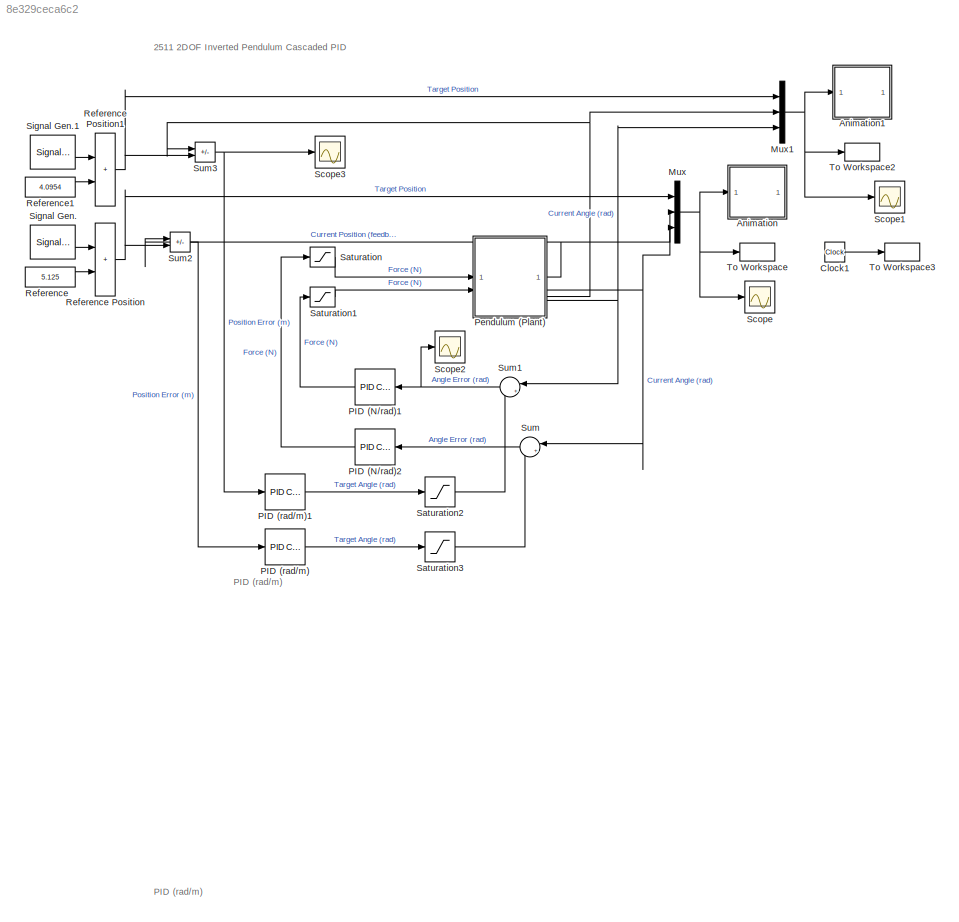
MODEL slx_8e329ceca6c2
KIND model
CONFIG AbsTol = 1e-6
CONFIG EnableMultiTasking = off
CONFIG FixedStep = 0.02
CONFIG MaxStep = 0.02
CONFIG MinStep = auto
CONFIG RelTol = 1e-3
CONFIG SampleTimeConstraint = Unconstrained
CONFIG SolverName = FixedStepAuto
CONFIG StartTime = 0
CONFIG StopTime = inf
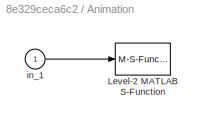
BLOCK [SubSystem] Animation
BLOCK [M-S-Function] Animation/Level-2 MATLAB S-Function
  FunctionName = pendan
  Parameters = RefBlock
BLOCK [Inport] Animation/in_1
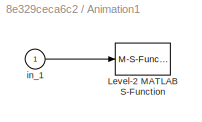
BLOCK [SubSystem] Animation1
BLOCK [M-S-Function] Animation1/Level-2 MATLAB S-Function
  FunctionName = pendan
  Parameters = RefBlock
BLOCK [Inport] Animation1/in_1
BLOCK [Clock] Clock1
BLOCK [Mux] Mux
  DisplayOption = bar
  Inputs = 3
BLOCK [Mux] Mux1
  DisplayOption = bar
  Inputs = 3
BLOCK [Reference] PID (N//rad)1  REF=slpidlib/PID Controller
  LibrarySourceBlock = simulink/Continuous/PID Controller
  SourceBlock = slpidlib/PID Controller
  SourceType = PID 1dof
BLOCK [Reference] PID (N//rad)2  REF=slpidlib/PID Controller
  LibrarySourceBlock = simulink/Continuous/PID Controller
  SourceBlock = slpidlib/PID Controller
  SourceType = PID 1dof
BLOCK [Reference] PID (rad//m)  REF=slpidlib/PID Controller
  LibrarySourceBlock = simulink/Continuous/PID Controller
  SourceBlock = slpidlib/PID Controller
  SourceType = PID 1dof
BLOCK [Reference] PID (rad//m)1  REF=slpidlib/PID Controller
  LibrarySourceBlock = simulink/Continuous/PID Controller
  SourceBlock = slpidlib/PID Controller
  SourceType = PID 1dof
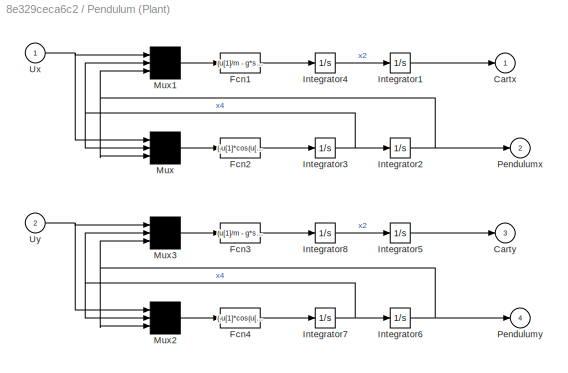
BLOCK [SubSystem] Pendulum (Plant)
BLOCK [Outport] Pendulum (Plant)/Cartx
  InitialOutput = 0
  Unit = m
  VectorParamsAs1DForOutWhenUnconnected = off
BLOCK [Outport] Pendulum (Plant)/Carty
  InitialOutput = 0
  Port = 3
  Unit = m
  VectorParamsAs1DForOutWhenUnconnected = off
BLOCK [Fcn] Pendulum (Plant)/Fcn1
  Expr = (u[1]/m - g*sin(u[3])*cos(u[3]) + l*power(u[2],2)*sin(u[3]))/(Mcartx/m + power(sin(u[3]),2))
BLOCK [Fcn] Pendulum (Plant)/Fcn2
  Expr = (-u[1]*cos(u[3])/m + (Mcartx+m)*g*sin(u[3])/m - l*power(u[2],2)*sin(u[3])*cos(u[3]))/(l*(Mcartx/m + power(sin(u[3]),2)))
BLOCK [Fcn] Pendulum (Plant)/Fcn3
  Expr = (u[1]/m - g*sin(u[3])*cos(u[3]) + l*power(u[2],2)*sin(u[3]))/(Mcarty/m + power(sin(u[3]),2))
BLOCK [Fcn] Pendulum (Plant)/Fcn4
  Expr = (-u[1]*cos(u[3])/m + (Mcarty+m)*g*sin(u[3])/m - l*power(u[2],2)*sin(u[3])*cos(u[3]))/(l*(Mcarty/m + power(sin(u[3]),2)))
BLOCK [Integrator] Pendulum (Plant)/Integrator1
BLOCK [Integrator] Pendulum (Plant)/Integrator2
BLOCK [Integrator] Pendulum (Plant)/Integrator3
BLOCK [Integrator] Pendulum (Plant)/Integrator4
BLOCK [Integrator] Pendulum (Plant)/Integrator5
BLOCK [Integrator] Pendulum (Plant)/Integrator6
BLOCK [Integrator] Pendulum (Plant)/Integrator7
BLOCK [Integrator] Pendulum (Plant)/Integrator8
BLOCK [Mux] Pendulum (Plant)/Mux
  Inputs = 3
BLOCK [Mux] Pendulum (Plant)/Mux1
  Inputs = 3
BLOCK [Mux] Pendulum (Plant)/Mux2
  Inputs = 3
BLOCK [Mux] Pendulum (Plant)/Mux3
  Inputs = 3
BLOCK [Outport] Pendulum (Plant)/Pendulumx
  InitialOutput = 0
  Port = 2
  Unit = rad
  VectorParamsAs1DForOutWhenUnconnected = off
BLOCK [Outport] Pendulum (Plant)/Pendulumy
  InitialOutput = 0
  Port = 4
  Unit = rad
  VectorParamsAs1DForOutWhenUnconnected = off
BLOCK [Inport] Pendulum (Plant)/Ux
  Unit = N
BLOCK [Inport] Pendulum (Plant)/Uy
  Port = 2
  Unit = N
BLOCK [Constant] Reference
  Value = 5.125
BLOCK [Sum] Reference Position
  IconShape = rectangular
  InputSameDT = on
  OutDataTypeStr = Inherit: Same as first input
  SaturateOnIntegerOverflow = on
BLOCK [Sum] Reference Position1
  IconShape = rectangular
  InputSameDT = on
  OutDataTypeStr = Inherit: Same as first input
  SaturateOnIntegerOverflow = on
BLOCK [Constant] Reference1
  Value = 4.0954
BLOCK [Saturate] Saturation
  LowerLimit = -10
  UpperLimit = 10
BLOCK [Saturate] Saturation1
  LowerLimit = -10
  UpperLimit = 10
BLOCK [Saturate] Saturation2
  LowerLimit = -.20
  UpperLimit = 0.20
BLOCK [Saturate] Saturation3
  LowerLimit = -.25
  UpperLimit = 0.25
BLOCK [Scope] Scope
  Floating = off
  NumInputPorts = 1
  ScopeSpecificationString = Simulink.scopes.TimeScopeBlockCfg('CurrentConfiguration', extmgr.ConfigurationSet(extmgr.Configuration('Core','General UI',true),extmgr.Configuration('Core','Source UI',true),extmgr.Configuration('Sources','WiredSimulink',true),extmgr.Configuration('Visuals','Time Domain',true,'SerializedDisplays',{struct('MinYLimReal','-8.56852','MaxYLimReal','14.18038','YLabelReal','Refernce and Cart Position (m...<+1735ch>
BLOCK [Scope] Scope1
  Floating = off
  NumInputPorts = 1
  ScopeSpecificationString = Simulink.scopes.TimeScopeBlockCfg('CurrentConfiguration', extmgr.ConfigurationSet(extmgr.Configuration('Core','General UI',true),extmgr.Configuration('Core','Source UI',true),extmgr.Configuration('Sources','WiredSimulink',true,'DataLoggingVariableName','ScopeData1'),extmgr.Configuration('Visuals','Time Domain',true,'SerializedDisplays',{struct('MinYLimReal','-8.56852','MaxYLimReal','14.18038','YLa...<+1774ch>
BLOCK [Scope] Scope2
  Floating = off
  NumInputPorts = 1
  ScopeSpecificationString = Simulink.scopes.TimeScopeBlockCfg('CurrentConfiguration', extmgr.ConfigurationSet(extmgr.Configuration('Core','General UI',true),extmgr.Configuration('Core','Source UI',true),extmgr.Configuration('Sources','WiredSimulink',true,'DataLoggingVariableName','ScopeData1'),extmgr.Configuration('Visuals','Time Domain',true,'SerializedDisplays',{struct('MinYLimReal','-0.30211','MaxYLimReal','0.48631','YLab...<+1478ch>
BLOCK [Scope] Scope3
  Floating = off
  NumInputPorts = 1
  ScopeSpecificationString = Simulink.scopes.TimeScopeBlockCfg('CurrentConfiguration', extmgr.ConfigurationSet(extmgr.Configuration('Core','General UI',true),extmgr.Configuration('Core','Source UI',true),extmgr.Configuration('Sources','WiredSimulink',true,'DataLoggingVariableName','ScopeData2'),extmgr.Configuration('Visuals','Time Domain',true,'SerializedDisplays',{struct('MinYLimReal','-8.64682','MaxYLimReal','-0.79661','YLa...<+1486ch>
BLOCK [SignalGenerator] Signal Gen.
  Amplitude = 0
  Frequency = 0.0400000
  Units = rad/sec
  WaveForm = square
BLOCK [SignalGenerator] Signal Gen.1
  Amplitude = 0
  Frequency = 0.0400000
  Units = rad/sec
  WaveForm = square
BLOCK [Sum] Sum
  Inputs = |+-
BLOCK [Sum] Sum1
  Inputs = |+-
BLOCK [Sum] Sum2
  IconShape = rectangular
  InputSameDT = on
  Inputs = -+
  OutDataTypeStr = Inherit: Same as first input
  SaturateOnIntegerOverflow = on
BLOCK [Sum] Sum3
  IconShape = rectangular
  InputSameDT = on
  Inputs = -+
  OutDataTypeStr = Inherit: Same as first input
  SaturateOnIntegerOverflow = on
BLOCK [ToWorkspace] To Workspace
  SampleTime = 0.1
  VariableName = y
BLOCK [ToWorkspace] To Workspace2
  SampleTime = 0.1
  VariableName = y1
BLOCK [ToWorkspace] To Workspace3
  SampleTime = 0.1
  VariableName = t1
ANNOTATION (root): 2511 2DOF Inverted Pendulum Cascaded PID
ANNOTATION (root): PID (rad/m)
LINE Animation/in_1:1 -> Animation/Level-2 MATLAB S-Function:1
LINE Animation1/in_1:1 -> Animation1/Level-2 MATLAB S-Function:1
LINE Clock1:1 -> To Workspace3:1
NET Mux1:1 -> Animation1:1, Scope1:1, To Workspace2:1
NET Mux:1 -> Animation:1, Scope:1, To Workspace:1
LINE PID (N//rad)1:1 -> Saturation1:1
LINE PID (N//rad)2:1 -> Saturation:1
LINE PID (rad//m)1:1 -> Saturation2:1
LINE PID (rad//m):1 -> Saturation3:1
LINE Pendulum (Plant)/Fcn1:1 -> Pendulum (Plant)/Integrator4:1
LINE Pendulum (Plant)/Fcn2:1 -> Pendulum (Plant)/Integrator3:1
LINE Pendulum (Plant)/Fcn3:1 -> Pendulum (Plant)/Integrator8:1
LINE Pendulum (Plant)/Fcn4:1 -> Pendulum (Plant)/Integrator7:1
LINE Pendulum (Plant)/Integrator1:1 -> Pendulum (Plant)/Cartx:1
NET Pendulum (Plant)/Integrator2:1 -> Pendulum (Plant)/Mux1:3, Pendulum (Plant)/Mux:3, Pendulum (Plant)/Pendulumx:1
NET Pendulum (Plant)/Integrator3:1 -> Pendulum (Plant)/Integrator2:1, Pendulum (Plant)/Mux1:2, Pendulum (Plant)/Mux:2
LINE Pendulum (Plant)/Integrator4:1 -> Pendulum (Plant)/Integrator1:1
LINE Pendulum (Plant)/Integrator5:1 -> Pendulum (Plant)/Carty:1
NET Pendulum (Plant)/Integrator6:1 -> Pendulum (Plant)/Mux2:3, Pendulum (Plant)/Mux3:3, Pendulum (Plant)/Pendulumy:1
NET Pendulum (Plant)/Integrator7:1 -> Pendulum (Plant)/Integrator6:1, Pendulum (Plant)/Mux2:2, Pendulum (Plant)/Mux3:2
LINE Pendulum (Plant)/Integrator8:1 -> Pendulum (Plant)/Integrator5:1
LINE Pendulum (Plant)/Mux1:1 -> Pendulum (Plant)/Fcn1:1
LINE Pendulum (Plant)/Mux2:1 -> Pendulum (Plant)/Fcn4:1
LINE Pendulum (Plant)/Mux3:1 -> Pendulum (Plant)/Fcn3:1
LINE Pendulum (Plant)/Mux:1 -> Pendulum (Plant)/Fcn2:1
NET Pendulum (Plant)/Ux:1 -> Pendulum (Plant)/Mux1:1, Pendulum (Plant)/Mux:1
NET Pendulum (Plant)/Uy:1 -> Pendulum (Plant)/Mux2:1, Pendulum (Plant)/Mux3:1
NET Pendulum (Plant):1 -> Mux:2, Sum2:1
NET Pendulum (Plant):2 -> Mux:3, Sum:1
NET Pendulum (Plant):3 -> Mux1:2, Sum3:1
NET Pendulum (Plant):4 -> Mux1:3, Sum1:1
NET Reference Position1:1 -> Mux1:1, Sum3:2
NET Reference Position:1 -> Mux:1, Sum2:2
LINE Reference1:1 -> Reference Position1:2
LINE Reference:1 -> Reference Position:2
LINE Saturation1:1 -> Pendulum (Plant):2
LINE Saturation2:1 -> Sum1:2
LINE Saturation3:1 -> Sum:2
LINE Saturation:1 -> Pendulum (Plant):1
LINE Signal Gen.1:1 -> Reference Position1:1
LINE Signal Gen.:1 -> Reference Position:1
NET Sum1:1 -> PID (N//rad)1:1, Scope2:1
LINE Sum2:1 -> PID (rad//m):1
NET Sum3:1 -> PID (rad//m)1:1, Scope3:1
LINE Sum:1 -> PID (N//rad)2:1
note: NET lines group one-source signal fan-out (src -> all destinations, sorted); 1:1 wires keep LINE
